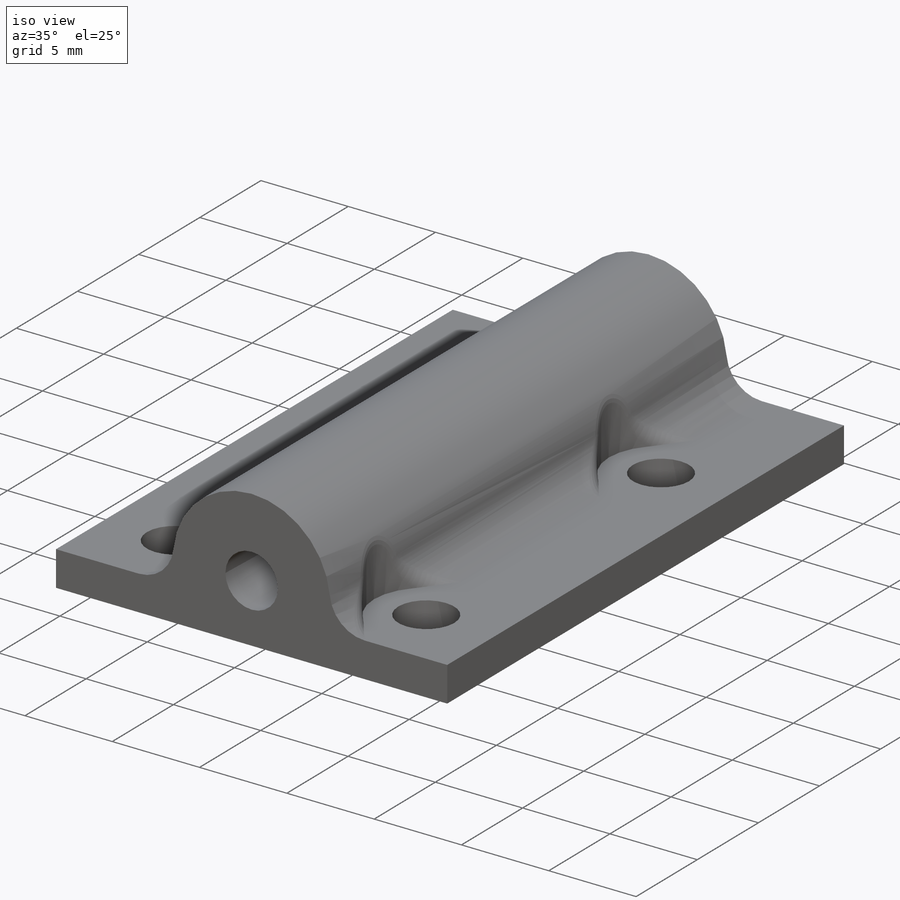
[diagram: iso view]
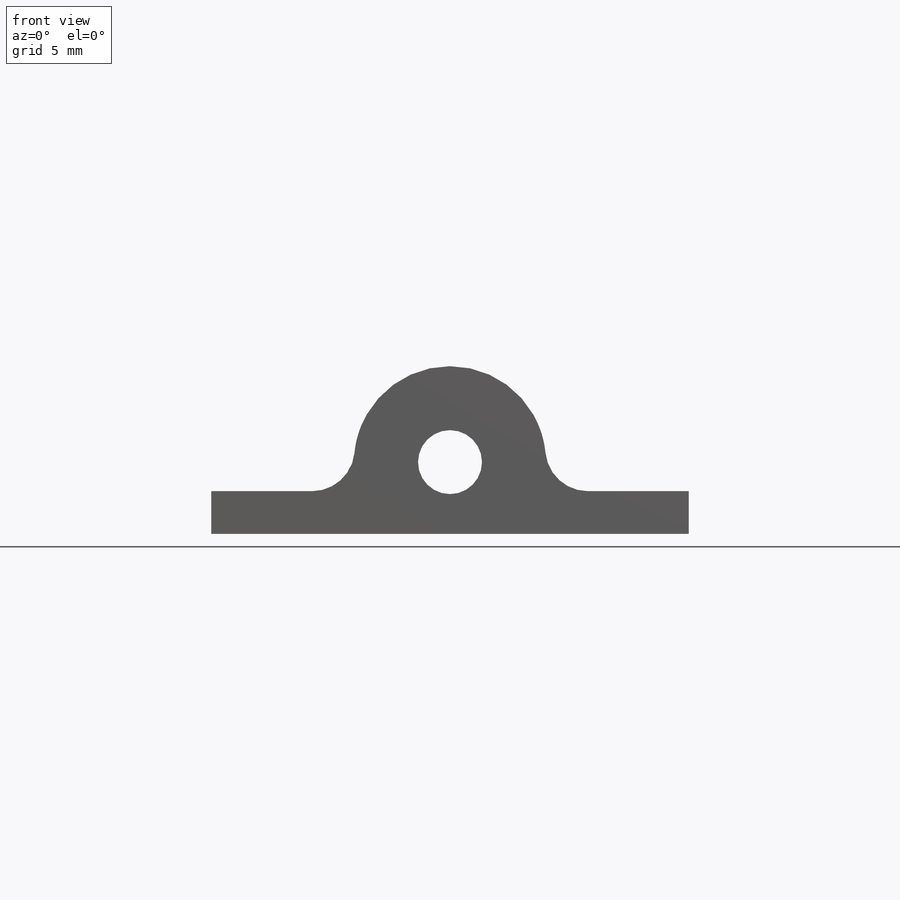
[diagram: front view]
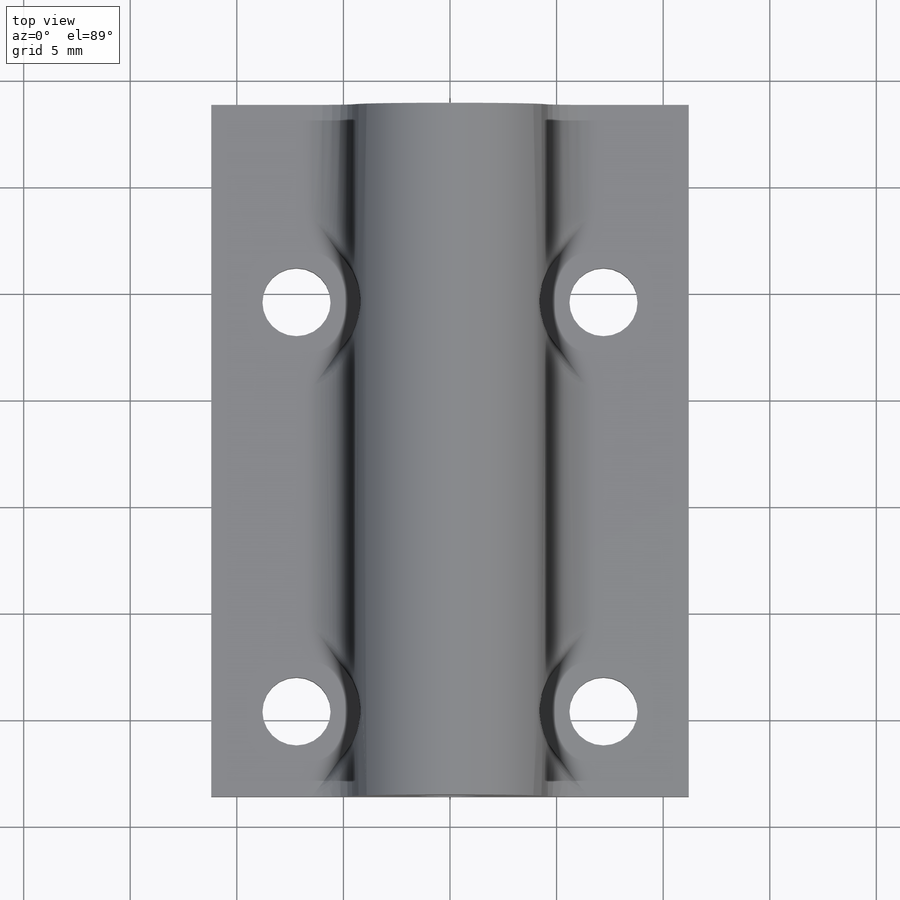
[diagram: top view]
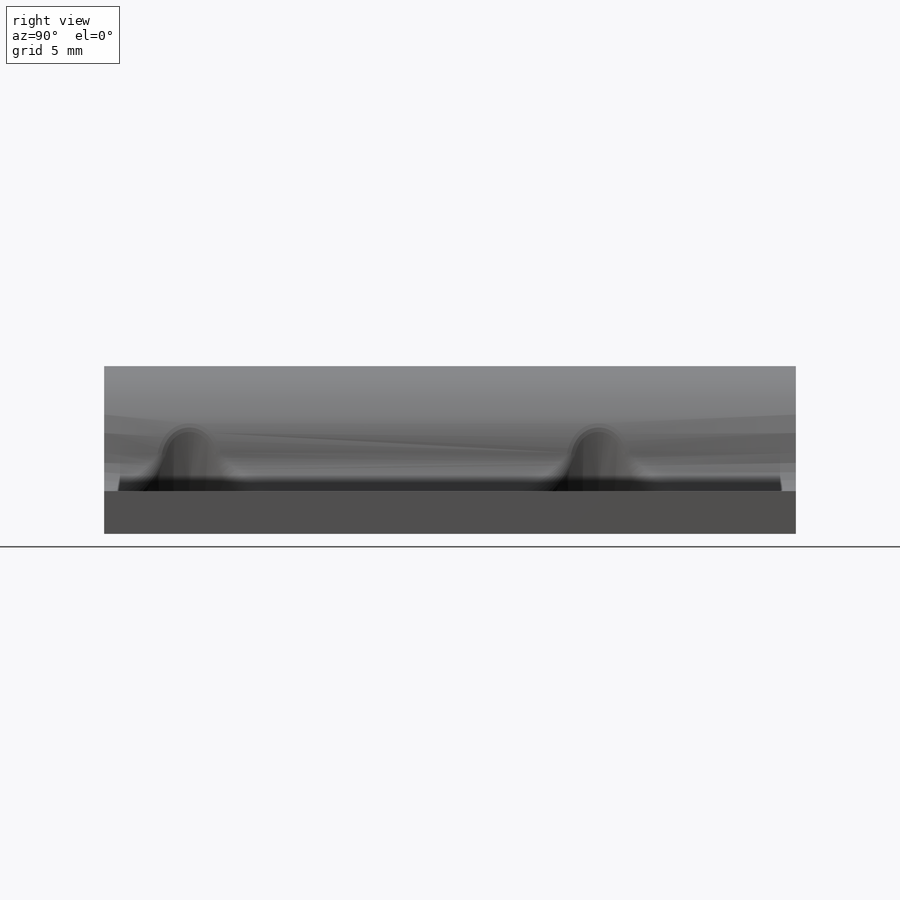
[diagram: right view]
SOLIDWORKS PART (.sldprt)
format: sldprt  version: not decoded by parser v0  size: 353,280 bytes
history: native  units: mm
features: sketch x9, cut_extrude x6, material x1, extrude x1, fillet x1 (+11 scaffold rows collapsed)
feature tree (29):
  scaffold x11  (default folders/planes/origin — collapsed)
  material  "Material <not specified>"
  sketch  "Sketch1"
  sketch  "Sketch3"  dims[D2=2.0mm D3=10.15mm D4=13.05mm D5=0.5mm D6=6.65mm D7=3.0mm D8=12.55mm D9=0.5mm D1=0.5mm]
  sketch  "Sketch4"  dims[c1.D2=1.0mm c1.D4=5.0mm c1.D5=2.0mm c1.D1=~4.839581mm c2.D1=~0.211987deg c3.D1=0.3mm c3.D3=2.0mm c3.D4=2.0mm c3.D6=0.7mm]
  extrude  "Boss-Extrude1"  [1 undecoded]
  sketch  "Sketch5"
  cut_extrude  "Cut-Extrude1"  [1 undecoded]
  sketch  "Sketch6"  dims[D1=6.0mm]
  cut_extrude  "Cut-Extrude2"  [1 undecoded]
  fillet  "Fillet1"  Radius=1mm
  sketch  "Sketch7"
  cut_extrude  "Cut-Extrude3"  [1 undecoded]
  sketch  "Sketch9"
  cut_extrude  "Cut-Extrude4"  [1 undecoded]
  sketch  "Sketch10"
  cut_extrude  "Cut-Extrude5"  [1 undecoded]
  sketch  "Sketch11"  dims[D1=0.5mm]
  cut_extrude  "Cut-Extrude6"  [1 undecoded]
decode coverage: 5 of 17 modeling features carry decoded parameters
note: ~ marks probable driven/reference dimensions
note: 7 parameter values undecoded
summary: no parameter record found for 7 features
note: suppression state not decoded; provenance and decode notes live in map.json
